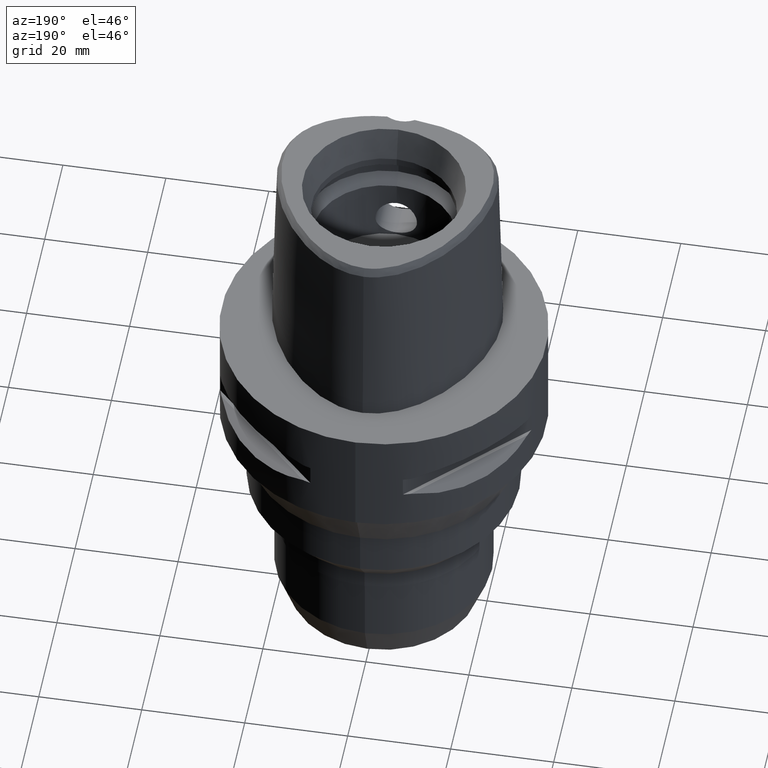
[diagram: clean part render]
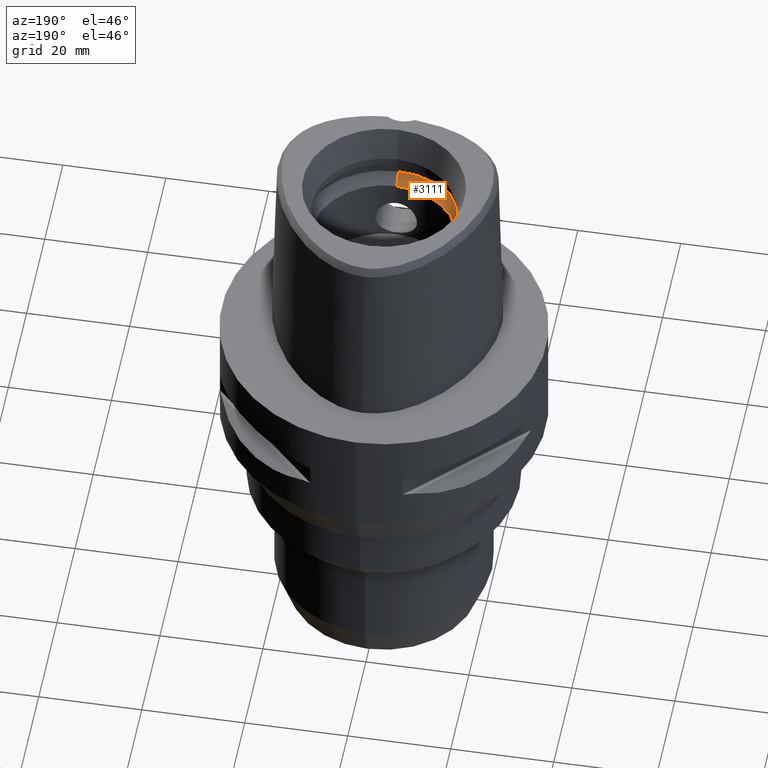
[diagram: same view with one face highlighted and labeled with its STEP entity id]
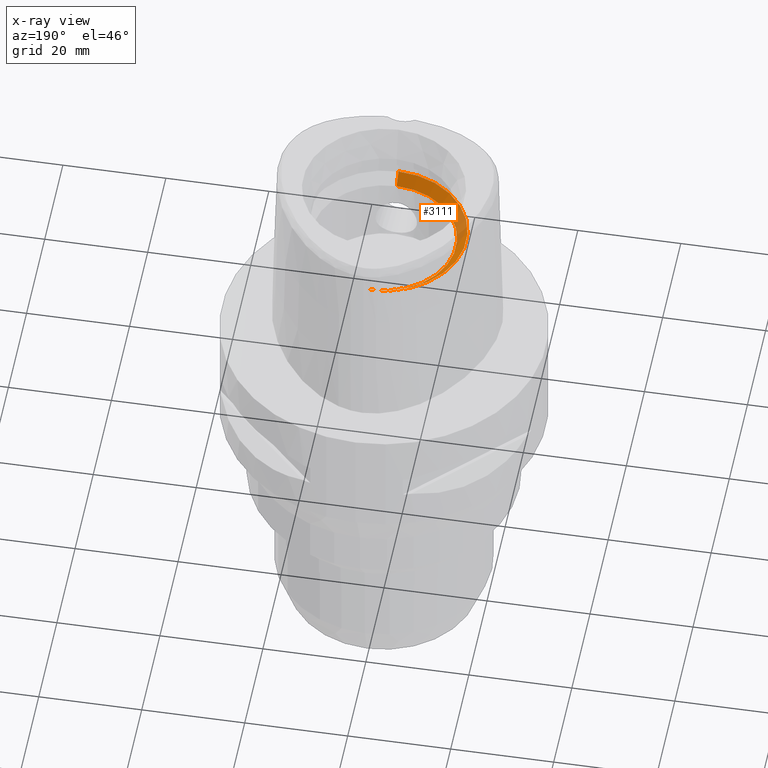
[diagram: x-ray of the same camera — body ghosted, the highlighted face saturated]
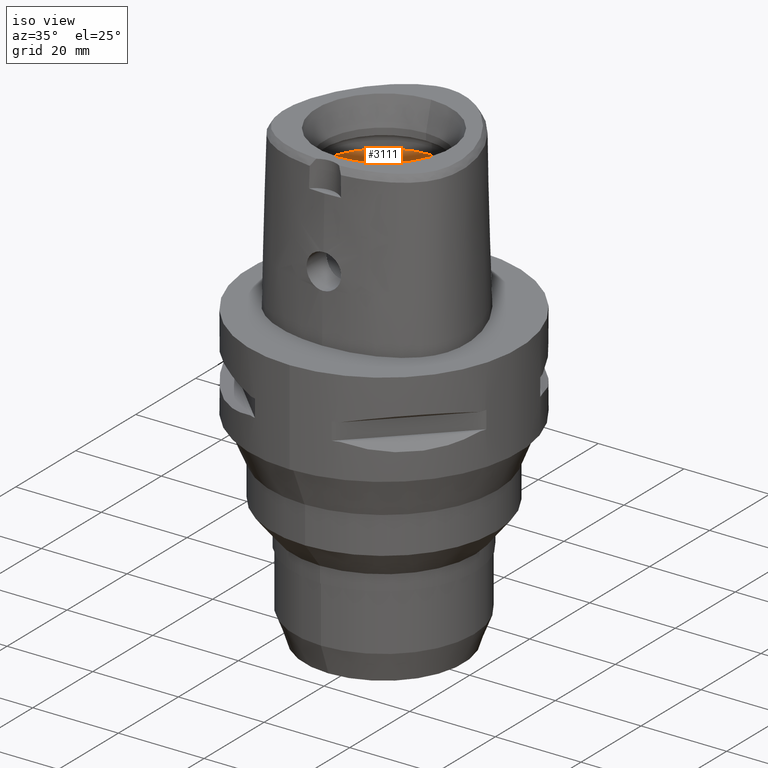
[diagram: same view with one face highlighted and labeled with its STEP entity id]
A machine part, auxiliary view. The second image highlights one B-rep face of the part: STEP entity #3111.
The next image is the same camera in x-ray: the body ghosted, the highlighted face saturated — about 18% of this face is hidden behind the body in this view.
A second angle (iso view) of the same face is appended — the face is thin or edge-on in the first view.
In plain terms, the highlighted conical surface has half-angle 45 deg.
Its self-contained STEP definition (entity closure, byte-faithful):
#1106=DIRECTION('',(0.E0,-7.071067811865E-1,7.071067811865E-1));
#1107=VECTOR('',#1106,2.828427124746E0);
#1108=CARTESIAN_POINT('',(0.E0,-1.4E1,2.42E1));
#1109=LINE('',#1108,#1107);
#1113=CARTESIAN_POINT('',(0.E0,0.E0,2.62E1));
#1114=DIRECTION('',(0.E0,0.E0,-1.E0));
#1115=DIRECTION('',(0.E0,-1.E0,0.E0));
#1116=AXIS2_PLACEMENT_3D('',#1113,#1114,#1115);
#1121=CARTESIAN_POINT('',(0.E0,0.E0,2.42E1));
#1122=DIRECTION('',(0.E0,0.E0,1.E0));
#1123=DIRECTION('',(0.E0,1.E0,0.E0));
#1124=AXIS2_PLACEMENT_3D('',#1121,#1122,#1123);
#1137=DIRECTION('',(0.E0,7.071067811865E-1,7.071067811865E-1));
#1138=VECTOR('',#1137,2.828427124746E0);
#1139=CARTESIAN_POINT('',(0.E0,1.4E1,2.42E1));
#1140=LINE('',#1139,#1138);
#1706=CARTESIAN_POINT('',(0.E0,1.4E1,2.42E1));
#1707=VERTEX_POINT('',#1706);
#1708=CARTESIAN_POINT('',(0.E0,-1.4E1,2.42E1));
#1709=VERTEX_POINT('',#1708);
#1717=CARTESIAN_POINT('',(0.E0,-1.6E1,2.62E1));
#1718=VERTEX_POINT('',#1717);
#1719=CARTESIAN_POINT('',(0.E0,1.6E1,2.62E1));
#1720=VERTEX_POINT('',#1719);
#3097=CARTESIAN_POINT('',(0.E0,0.E0,2.52E1));
#3098=DIRECTION('',(0.E0,0.E0,1.E0));
#3099=DIRECTION('',(0.E0,1.E0,0.E0));
#3100=AXIS2_PLACEMENT_3D('',#3097,#3098,#3099);
#3101=CONICAL_SURFACE('',#3100,1.5E1,4.5E1);
#3103=ORIENTED_EDGE('',*,*,#3102,.T.);
#3105=ORIENTED_EDGE('',*,*,#3104,.T.);
#3107=ORIENTED_EDGE('',*,*,#3106,.F.);
#3108=ORIENTED_EDGE('',*,*,#2935,.T.);
#3109=EDGE_LOOP('',(#3103,#3105,#3107,#3108));
#3110=FACE_OUTER_BOUND('',#3109,.F.);
#1117=CIRCLE('',#1116,1.6E1);
#1125=CIRCLE('',#1124,1.4E1);
#2935=EDGE_CURVE('',#1707,#1709,#1125,.T.);
#3102=EDGE_CURVE('',#1709,#1718,#1109,.T.);
#3104=EDGE_CURVE('',#1718,#1720,#1117,.T.);
#3106=EDGE_CURVE('',#1707,#1720,#1140,.T.);
#3111=ADVANCED_FACE('',(#3110),#3101,.F.);